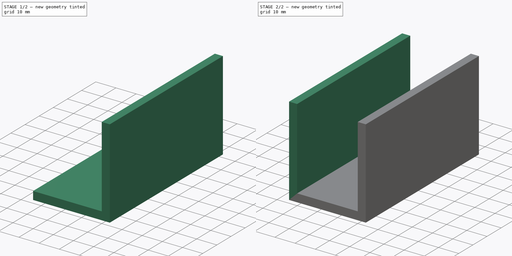
[diagram: build sequence overview — one tinted view per stage of 2, left to right]
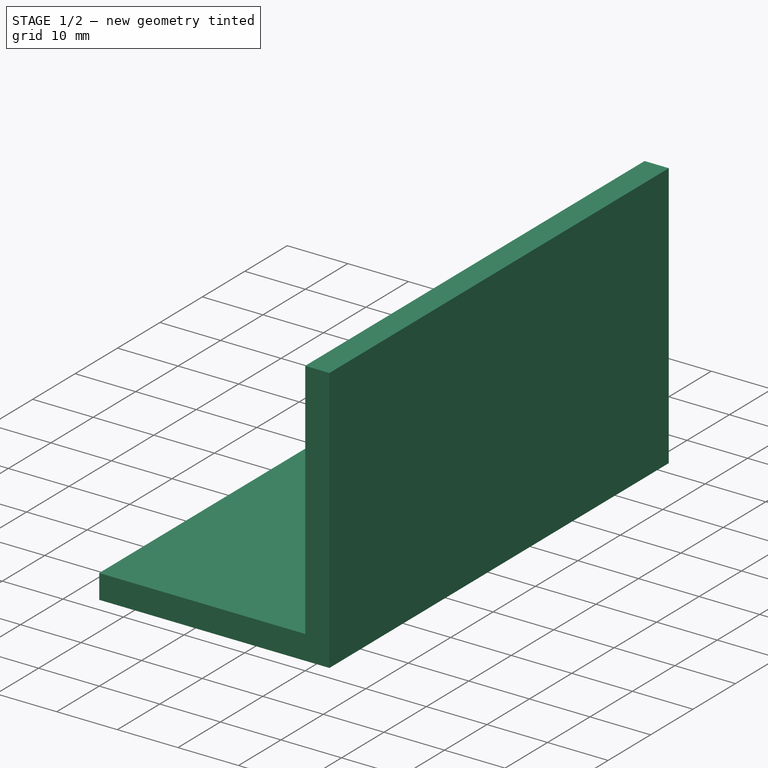
[diagram: stage 1 of 2 — iso view after this stage's code; geometry added in this stage tinted green]
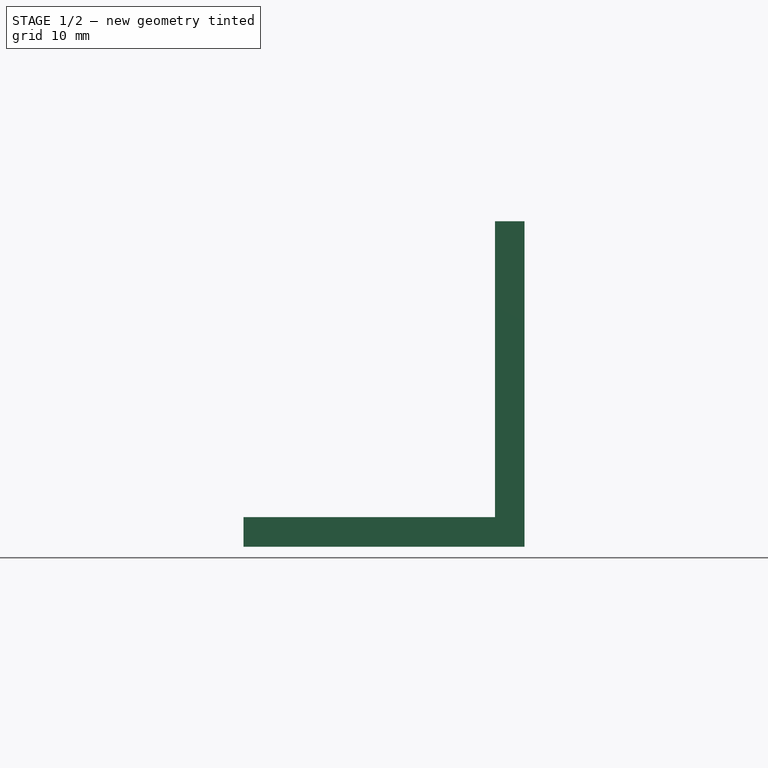
[diagram: stage 1 of 2 — front view after this stage's code; geometry added in this stage tinted green]
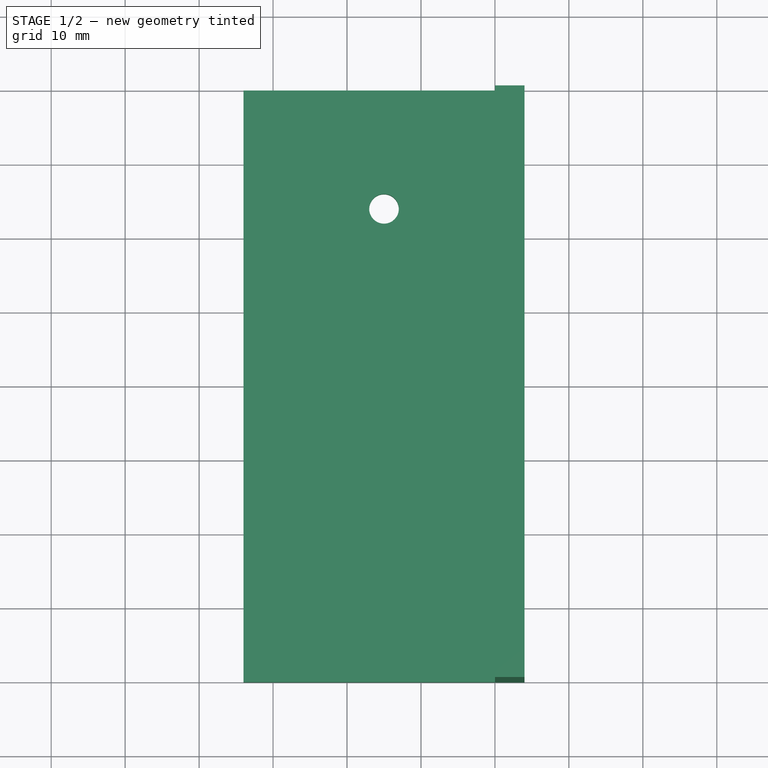
[diagram: stage 1 of 2 — top view after this stage's code; geometry added in this stage tinted green]
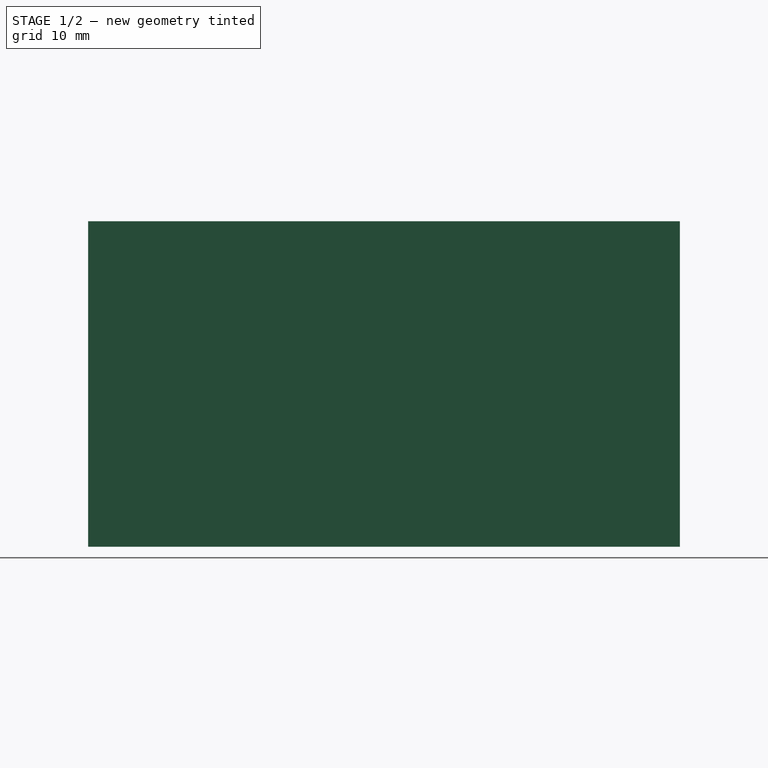
[diagram: stage 1 of 2 — right view after this stage's code; geometry added in this stage tinted green]
FCSTD DOCUMENT  (FreeCAD 1.0R39109 (Git))
Label: tellinki
License: All rights reserved
LicenseURL: https://en.wikipedia.org/wiki/All_rights_reserved
objects: PartDesign::Pad×3, Spreadsheet::Sheet×1, Sketcher::SketchObject×1, PartDesign::Body×1
note: 12 computed .brp shape members not serialized (recipe doc carries the construction recipe); baked Part::Feature solids carry a one-line shape summary decoded from their .brp

FEATURE [Spreadsheet::Sheet] Spreadsheet
  cells = A1(paksuus)==4 mm; A2(aukko)==30 mm; A3(korkeus)==40 mm; A4(matka)==80 mm
FEATURE [Sketcher::SketchObject] Sketch
  ArcFitTolerance = 1e-06
  AttachmentSupport = -> [XY_Plane]
  FullyConstrained = true
  MakeInternals = false
  MapMode = 5
  expr: Constraints[10] = Spreadsheet.matka
  expr: Constraints[12] = Spreadsheet.paksuus
  expr: Constraints[21] = Spreadsheet.paksuus
  expr: Constraints[30] = Spreadsheet.paksuus * 4
  expr: Constraints[32] = Spreadsheet.paksuus
  expr: Constraints[9] = Spreadsheet.aukko
  sketch-geometry (13):
    g0: LineSegment StartX=0 StartY=0 StartZ=0 EndX=0 EndY=-80 EndZ=0
    g1: LineSegment StartX=0 StartY=-80 StartZ=0 EndX=30 EndY=-80 EndZ=0
    g2: LineSegment StartX=30 StartY=-80 StartZ=0 EndX=30 EndY=0 EndZ=0
    g3: LineSegment StartX=30 StartY=0 StartZ=0 EndX=0 EndY=0 EndZ=0
    g4: LineSegment StartX=-4 StartY=0 StartZ=0 EndX=-4 EndY=-80 EndZ=0
    g5: LineSegment StartX=-4 StartY=0 StartZ=0 EndX=0 EndY=0 EndZ=0
    g6: LineSegment StartX=-4 StartY=-80 StartZ=0 EndX=0 EndY=-80 EndZ=0
    g7: LineSegment StartX=34 StartY=0 StartZ=0 EndX=30 EndY=0 EndZ=0
    g8: LineSegment StartX=34 StartY=0 StartZ=0 EndX=34 EndY=-80 EndZ=0
    g9: LineSegment StartX=30 StartY=-80 StartZ=0 EndX=34 EndY=-80 EndZ=0
    g10: GeomPoint X=15 Y=0 Z=0
    g11: LineSegment [constr] StartX=15 StartY=0 StartZ=0 EndX=15 EndY=-16 EndZ=0
    g12: Circle CenterX=15 CenterY=-16 CenterZ=0 NormalX=0 NormalY=0 NormalZ=1 AngleXU=0 Radius=2
  constraints (33):
    c: Coincident(g0,g1)
    c: Coincident(g1,g2)
    c: Coincident(g2,g3)
    c: Coincident(g3,g0)
    c: Vertical(g0)
    c: Vertical(g2)
    c: Horizontal(g1)
    c: Horizontal(g3)
    c: Coincident(g0,g-1)
    c: Distance(g3,g3) = 30
    c: DistanceY(g2,g2) = 80
    c: Vertical(g4)
    c: Distance(g0,g4) = 4
    c: Coincident(g5,g4)
    c: Coincident(g5,g0)
    c: Horizontal(g5)
    c: Coincident(g6,g4)
    c: Coincident(g6,g0)
    c: Horizontal(g6)
    c: Coincident(g7,g2)
    c: Horizontal(g7)
    c: DistanceX(g7,g7) = 4
    c: Coincident(g8,g7)
    c: Vertical(g8)
    c: Coincident(g9,g1)
    c: Coincident(g9,g8)
    c: Horizontal(g9)
    c: Symmetric(g3,g3,g10)
    c: Vertical(g11)
    c: Coincident(g11,g10)
    c: Distance(g11) = 16
    c: Coincident(g12,g11)
    c: Diameter(g12) = 4
FEATURE [PartDesign::Pad] Pad
  AlongSketchNormal = false
  Direction = (0,0,-1)
  Length = 4
  Length2 = 10
  Profile = -> Sketch [Edge2,Edge3,Edge7,Edge8,Edge9,Edge5,Edge1,Edge10,Edge11]
  ReferenceAxis = -> Sketch [N_Axis]
  Refine = true
  Suppressed = false
  Type = 0
  UseCustomVector = true
  expr: Length = Spreadsheet.paksuus
FEATURE [PartDesign::Pad] Pad001
  BaseFeature = -> Pad
  Direction = (0,0,1)
  Length = 40
  Length2 = 10
  Profile = -> Sketch [Edge9,Edge6,Edge10,Edge8]
  ReferenceAxis = -> Sketch [N_Axis]
  Refine = true
  Suppressed = false
  Type = 0
  expr: Length = Spreadsheet.korkeus
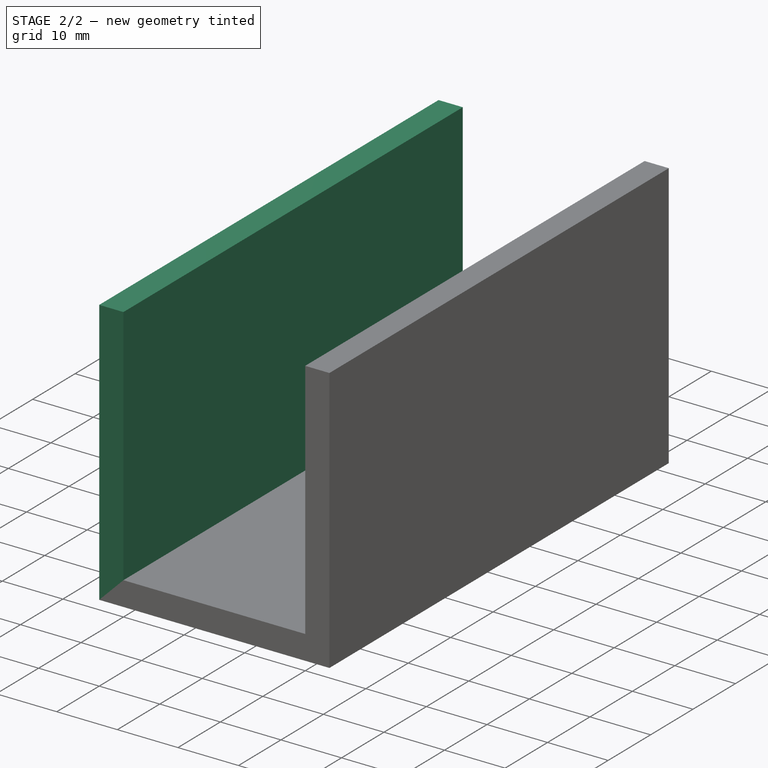
[diagram: stage 2 of 2 — iso view after this stage's code; geometry added in this stage tinted green]
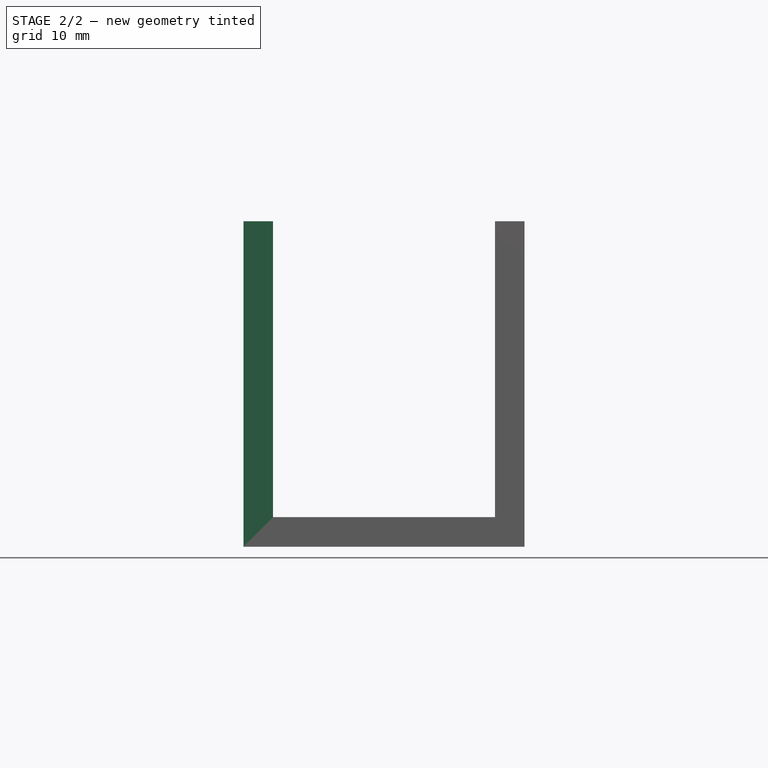
[diagram: stage 2 of 2 — front view after this stage's code; geometry added in this stage tinted green]
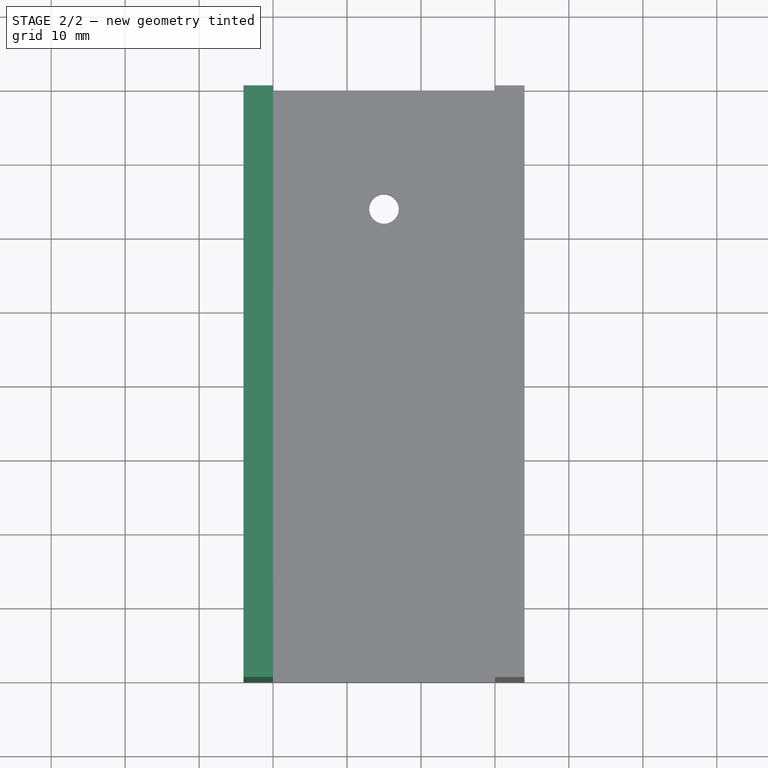
[diagram: stage 2 of 2 — top view after this stage's code; geometry added in this stage tinted green]
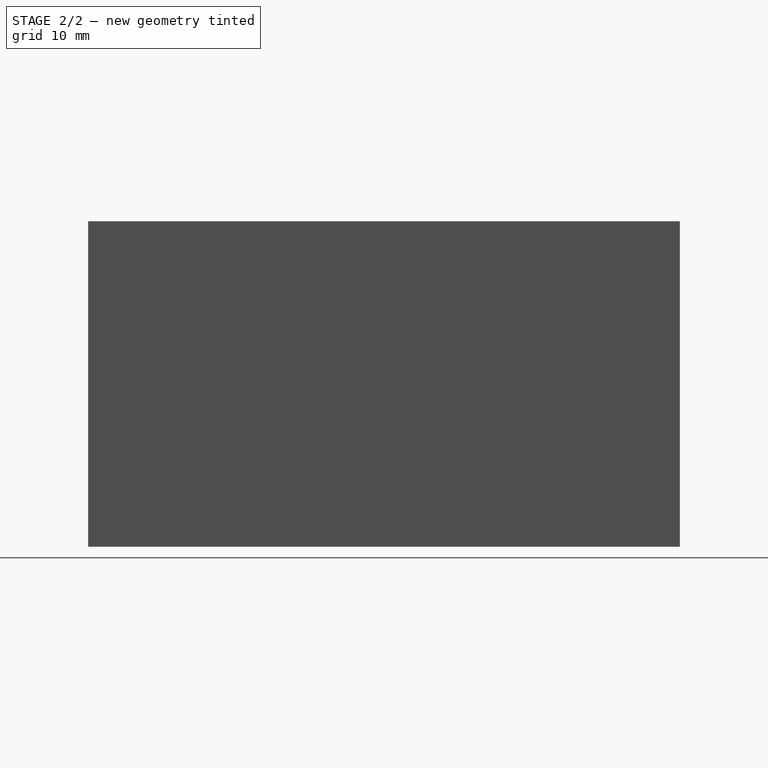
[diagram: stage 2 of 2 — right view after this stage's code; geometry added in this stage tinted green]
FEATURE [PartDesign::Pad] Pad002
  BaseFeature = -> Pad001
  Direction = (0,0,1)
  Length = 40
  Length2 = 10
  Profile = -> Sketch [Edge2,Edge4,Edge3,Edge1]
  ReferenceAxis = -> Sketch [N_Axis]
  Refine = true
  Suppressed = false
  Type = 0
  expr: Length = Spreadsheet.korkeus
FEATURE [PartDesign::Body] Body
  AllowCompound = false
  Group = -> [Sketch,Pad,Pad001,Pad002]
  Origin = -> Origin
  Tip = -> Pad002
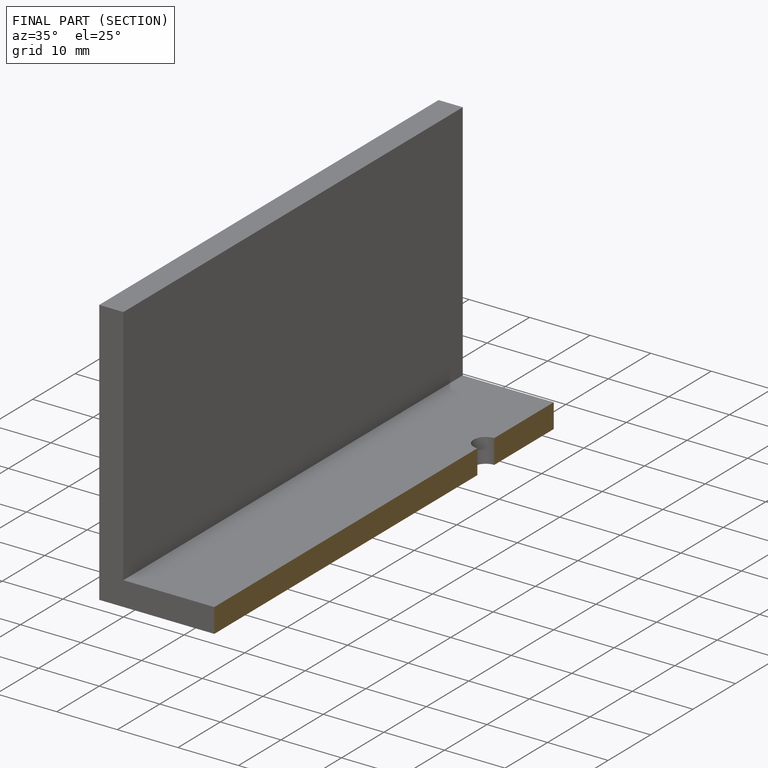
[diagram: finished part — half-section view (interior)]
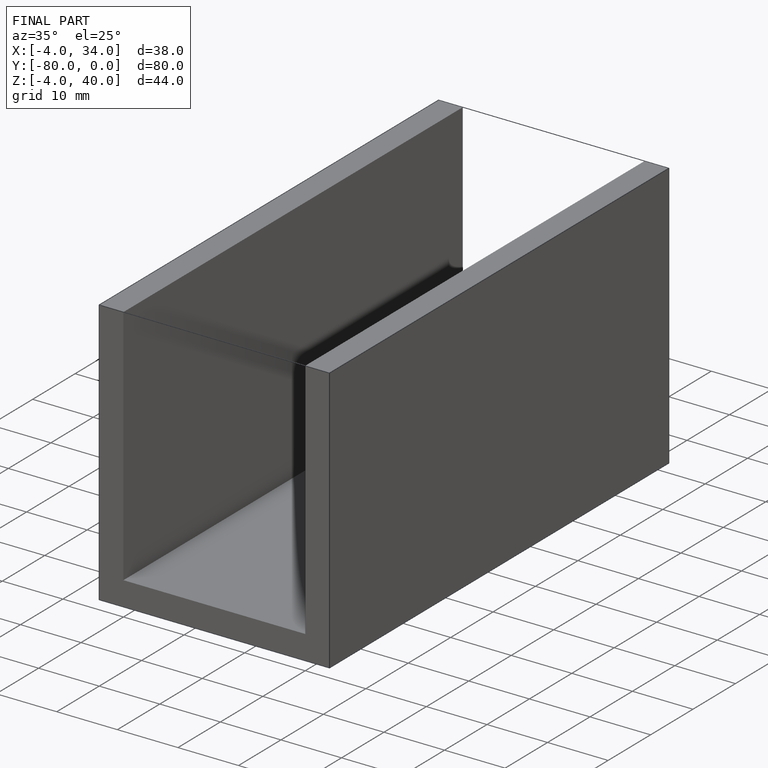
[diagram: finished part — iso view with bounding-box wireframe]
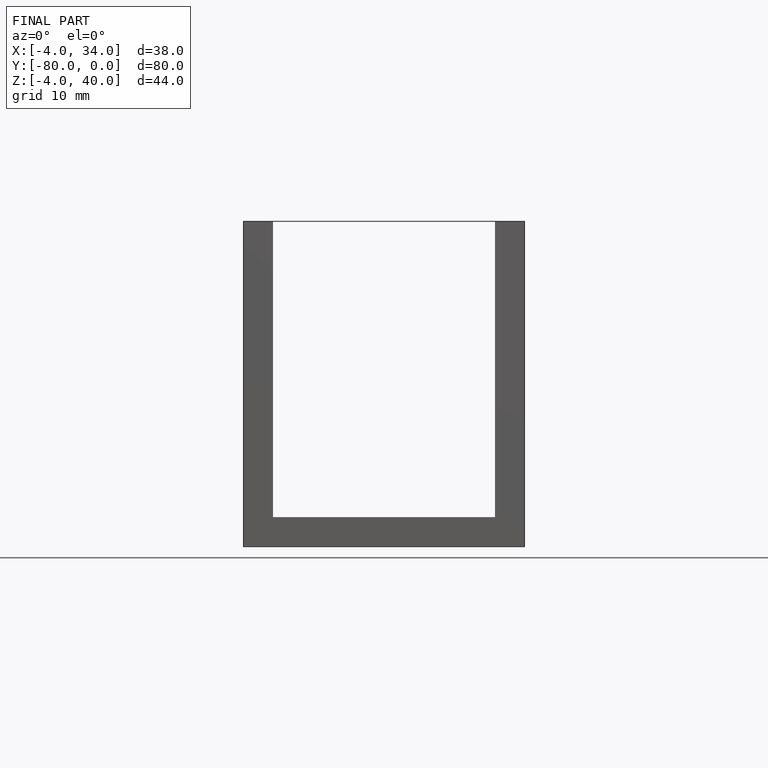
[diagram: finished part — front view with bounding-box wireframe]
